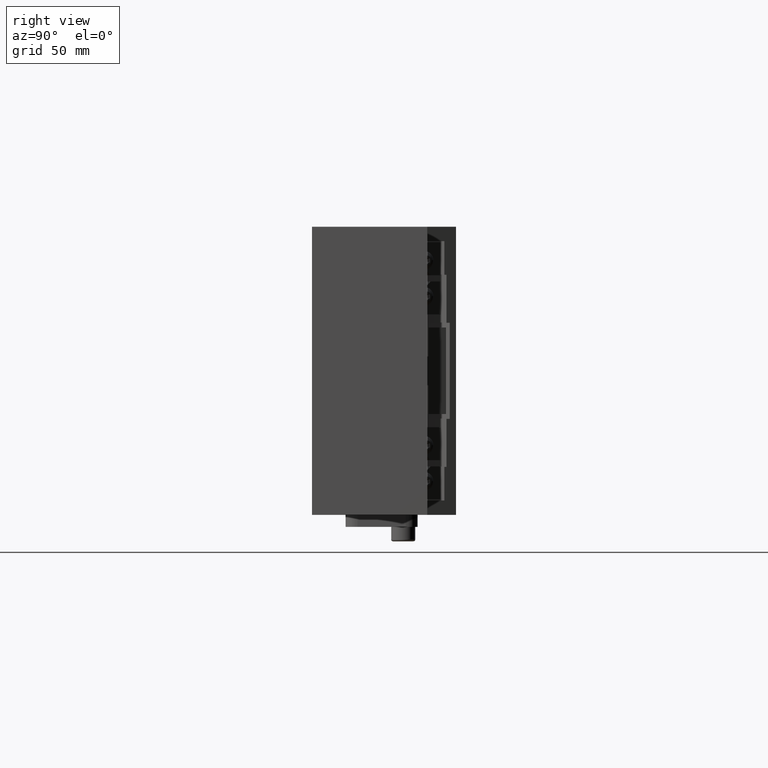
[diagram: clean part render]
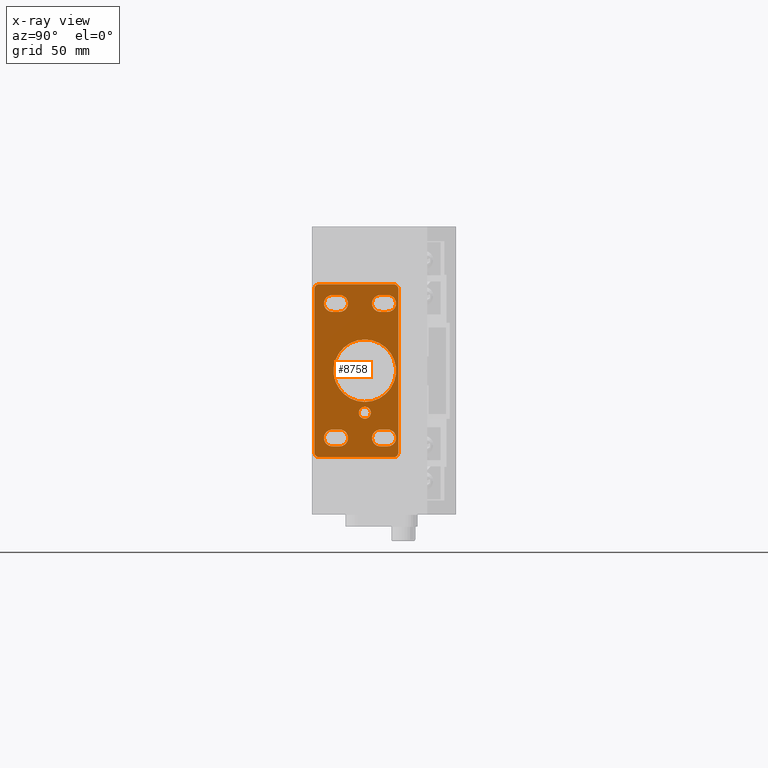
[diagram: x-ray — body ghosted, one internal face saturated and labeled with its STEP entity id]
A machine part, right view, then the same camera in x-ray: the body is ghosted and one INTERNAL B-rep face — a face not visible from any outside direction — is saturated and labeled: STEP entity #8758.
In plain terms, the highlighted planar face has unit normal (1, 0, -0).
Its self-contained STEP definition (entity closure, byte-faithful):
#15 = DIRECTION ( 'NONE',  ( -1.000000000000000000, -3.389675544402029850E-22, 0.000000000000000000 ) ) ;
#16 = CARTESIAN_POINT ( 'NONE',  ( -21.85429836251660163, 13.39383770330143975, -22.50124999999999886 ) ) ;
#317 = CARTESIAN_POINT ( 'NONE',  ( -21.85429836251660163, -6.606162296698549596, 29.99875000000000114 ) ) ;
#403 = DIRECTION ( 'NONE',  ( 3.389675544402035022E-22, -1.000000000000000000, 0.000000000000000000 ) ) ;
#450 = DIRECTION ( 'NONE',  ( -1.000000000000000000, -3.389675544402029850E-22, 0.000000000000000000 ) ) ;
#459 = EDGE_LOOP ( 'NONE', ( #18500, #81691, #52128, #59890 ) ) ;
#921 = EDGE_CURVE ( 'NONE', #13444, #88988, #40031, .T. ) ;
#990 = AXIS2_PLACEMENT_3D ( 'NONE', #16, #79049, #54771 ) ;
#1050 = CARTESIAN_POINT ( 'NONE',  ( -21.85429836251660163, -6.606162296698549596, 33.49875000000000114 ) ) ;
#1058 = VECTOR ( 'NONE', #42097, 1000.000000000000000 ) ;
#1107 = ORIENTED_EDGE ( 'NONE', *, *, #100101, .T. ) ;
#1124 = VERTEX_POINT ( 'NONE', #33847 ) ;
#1260 = VERTEX_POINT ( 'NONE', #13126 ) ;
#1799 = DIRECTION ( 'NONE',  ( 1.000000000000000000, 3.389675544402035022E-22, 0.000000000000000000 ) ) ;
#1974 = ORIENTED_EDGE ( 'NONE', *, *, #4255, .T. ) ;
#2243 = ORIENTED_EDGE ( 'NONE', *, *, #5034, .T. ) ;
#2312 = CARTESIAN_POINT ( 'NONE',  ( -21.85429836251660163, -9.606162296698549596, -22.50124999999999886 ) ) ;
#2470 = VERTEX_POINT ( 'NONE', #24743 ) ;
#3281 = DIRECTION ( 'NONE',  ( 0.000000000000000000, 0.000000000000000000, -1.000000000000000000 ) ) ;
#3567 = CIRCLE ( 'NONE', #97654, 2.000000000000001776 ) ;
#3606 = DIRECTION ( 'NONE',  ( 0.000000000000000000, 0.000000000000000000, -1.000000000000000000 ) ) ;
#3804 = FACE_BOUND ( 'NONE', #57893, .T. ) ;
#4020 = DIRECTION ( 'NONE',  ( -5.221200670323389832E-22, 0.000000000000000000, -1.000000000000000000 ) ) ;
#4255 = EDGE_CURVE ( 'NONE', #30353, #4613, #52357, .T. ) ;
#4315 = FACE_OUTER_BOUND ( 'NONE', #23215, .T. ) ;
#4613 = VERTEX_POINT ( 'NONE', #71420 ) ;
#4807 = DIRECTION ( 'NONE',  ( 0.000000000000000000, 0.000000000000000000, -1.000000000000000000 ) ) ;
#5034 = EDGE_CURVE ( 'NONE', #79952, #23345, #6746, .T. ) ;
#5421 = DIRECTION ( 'NONE',  ( 3.389675544402035022E-22, -1.000000000000000000, 0.000000000000000000 ) ) ;
#6023 = EDGE_LOOP ( 'NONE', ( #75878, #1974 ) ) ;
#6746 = CIRCLE ( 'NONE', #64502, 2.000000000000001776 ) ;
#7161 = CARTESIAN_POINT ( 'NONE',  ( -21.85429836251660163, 13.39383770330143975, 29.99875000000000114 ) ) ;
#7330 = VERTEX_POINT ( 'NONE', #90039 ) ;
#7583 = VERTEX_POINT ( 'NONE', #11423 ) ;
#7737 = ORIENTED_EDGE ( 'NONE', *, *, #56215, .T. ) ;
#7822 = AXIS2_PLACEMENT_3D ( 'NONE', #42553, #74064, #3281 ) ;
#7824 = AXIS2_PLACEMENT_3D ( 'NONE', #91194, #20447, #53492 ) ;
#8147 = CARTESIAN_POINT ( 'NONE',  ( -21.85429836251660163, -9.606162296698549596, -19.00125000000000242 ) ) ;
#8758 = ADVANCED_FACE ( 'NONE', ( #75096, #98341, #99369, #89556, #3804, #34333, #4315 ), #51832, .F. ) ;
#8998 = VECTOR ( 'NONE', #61318, 1000.000000000000000 ) ;
#9032 = CARTESIAN_POINT ( 'NONE',  ( -21.85429836251660163, 17.89383770330145040, 41.49875000000000114 ) ) ;
#9115 = ORIENTED_EDGE ( 'NONE', *, *, #46655, .F. ) ;
#9484 = AXIS2_PLACEMENT_3D ( 'NONE', #30745, #65167, #85966 ) ;
#10052 = AXIS2_PLACEMENT_3D ( 'NONE', #60074, #50804, #4807 ) ;
#10466 = CARTESIAN_POINT ( 'NONE',  ( -21.85429836251660163, -17.10616229669855315, -19.00125000000000242 ) ) ;
#11058 = LINE ( 'NONE', #50844, #42055 ) ;
#11124 = CARTESIAN_POINT ( 'NONE',  ( -21.85429836251660163, -17.10616229669855315, 36.99874999999999403 ) ) ;
#11423 = CARTESIAN_POINT ( 'NONE',  ( -21.85429836251660163, 15.89383770330144863, -30.50124999999999886 ) ) ;
#11942 = VERTEX_POINT ( 'NONE', #7161 ) ;
#13126 = CARTESIAN_POINT ( 'NONE',  ( -21.85429836251660163, -6.606162296698549596, -19.00125000000000242 ) ) ;
#13444 = VERTEX_POINT ( 'NONE', #61269 ) ;
#14303 = ORIENTED_EDGE ( 'NONE', *, *, #96295, .T. ) ;
#14792 = CARTESIAN_POINT ( 'NONE',  ( -21.85429836251660163, 3.893837703301449960, 5.498750000000000249 ) ) ;
#14942 = CIRCLE ( 'NONE', #72647, 3.499999999999999556 ) ;
#15446 = VERTEX_POINT ( 'NONE', #78563 ) ;
#15707 = DIRECTION ( 'NONE',  ( 0.000000000000000000, 0.000000000000000000, -1.000000000000000000 ) ) ;
#16467 = CARTESIAN_POINT ( 'NONE',  ( -21.85429836251660163, 3.893837703301449960, -7.501249999999999751 ) ) ;
#17286 = DIRECTION ( 'NONE',  ( 3.389675544402035022E-22, -1.000000000000000000, 0.000000000000000000 ) ) ;
#17621 = VECTOR ( 'NONE', #5421, 1000.000000000000000 ) ;
#18500 = ORIENTED_EDGE ( 'NONE', *, *, #97995, .T. ) ;
#18602 = EDGE_CURVE ( 'NONE', #7330, #66587, #33601, .T. ) ;
#18773 = CARTESIAN_POINT ( 'NONE',  ( -21.85429836251660163, 17.89383770330145040, 39.49875000000000114 ) ) ;
#18936 = DIRECTION ( 'NONE',  ( 0.000000000000000000, 0.000000000000000000, -1.000000000000000000 ) ) ;
#19315 = CARTESIAN_POINT ( 'NONE',  ( -21.85429836251660163, -17.10616229669855315, -30.50124999999999886 ) ) ;
#19685 = EDGE_CURVE ( 'NONE', #1260, #24202, #40199, .T. ) ;
#20138 = CARTESIAN_POINT ( 'NONE',  ( -21.85429836251660163, -9.606162296698549596, -26.00124999999999886 ) ) ;
#20447 = DIRECTION ( 'NONE',  ( 1.000000000000000000, 3.389675544402035022E-22, 0.000000000000000000 ) ) ;
#21232 = LINE ( 'NONE', #69767, #40043 ) ;
#22310 = EDGE_CURVE ( 'NONE', #95808, #63321, #66421, .T. ) ;
#22740 = AXIS2_PLACEMENT_3D ( 'NONE', #14792, #44771, #68011 ) ;
#22819 = AXIS2_PLACEMENT_3D ( 'NONE', #19315, #97328, #52345 ) ;
#22946 = CARTESIAN_POINT ( 'NONE',  ( -21.85429836251660163, -9.606162296698549596, 33.49875000000000114 ) ) ;
#23215 = EDGE_LOOP ( 'NONE', ( #38336, #2243, #9115, #58138, #74861, #86424, #94792, #49868 ) ) ;
#23345 = VERTEX_POINT ( 'NONE', #79659 ) ;
#24202 = VERTEX_POINT ( 'NONE', #8147 ) ;
#24743 = CARTESIAN_POINT ( 'NONE',  ( -21.85429836251660163, 10.39383770330144152, 29.99875000000000114 ) ) ;
#25400 = EDGE_CURVE ( 'NONE', #79551, #77999, #27689, .T. ) ;
#26381 = AXIS2_PLACEMENT_3D ( 'NONE', #1050, #47083, #40343 ) ;
#26731 = CIRCLE ( 'NONE', #64645, 3.499999999999999556 ) ;
#27260 = CARTESIAN_POINT ( 'NONE',  ( -21.85429836251660163, 10.39383770330144152, -19.00125000000000242 ) ) ;
#27297 = CIRCLE ( 'NONE', #66911, 3.499999999999999556 ) ;
#27358 = CIRCLE ( 'NONE', #50422, 2.000000000000001776 ) ;
#27689 = CIRCLE ( 'NONE', #22740, 13.00000000000000000 ) ;
#27832 = EDGE_LOOP ( 'NONE', ( #46672, #14303, #1107, #7737 ) ) ;
#28793 = VERTEX_POINT ( 'NONE', #63264 ) ;
#28826 = LINE ( 'NONE', #36060, #51213 ) ;
#30066 = EDGE_CURVE ( 'NONE', #40913, #1260, #14942, .T. ) ;
#30353 = VERTEX_POINT ( 'NONE', #84254 ) ;
#30576 = DIRECTION ( 'NONE',  ( -3.389675544402035022E-22, 1.000000000000000000, 0.000000000000000000 ) ) ;
#30745 = CARTESIAN_POINT ( 'NONE',  ( -21.85429836251660163, 13.39383770330143975, 33.49875000000000114 ) ) ;
#31993 = CARTESIAN_POINT ( 'NONE',  ( -21.85429836251660163, 10.39383770330144152, 36.99874999999999403 ) ) ;
#32397 = EDGE_LOOP ( 'NONE', ( #32412, #91469 ) ) ;
#32412 = ORIENTED_EDGE ( 'NONE', *, *, #25400, .F. ) ;
#33231 = LINE ( 'NONE', #64721, #101852 ) ;
#33601 = CIRCLE ( 'NONE', #38517, 2.000000000000001776 ) ;
#33847 = CARTESIAN_POINT ( 'NONE',  ( -21.85429836251660163, -6.606162296698549596, 36.99874999999999403 ) ) ;
#33863 = DIRECTION ( 'NONE',  ( 0.000000000000000000, 0.000000000000000000, -1.000000000000000000 ) ) ;
#34174 = ORIENTED_EDGE ( 'NONE', *, *, #22310, .T. ) ;
#34333 = FACE_BOUND ( 'NONE', #459, .T. ) ;
#35072 = EDGE_CURVE ( 'NONE', #80865, #1124, #75614, .T. ) ;
#36060 = CARTESIAN_POINT ( 'NONE',  ( -21.85429836251660163, -17.10616229669855315, 41.49875000000000114 ) ) ;
#38336 = ORIENTED_EDGE ( 'NONE', *, *, #54682, .F. ) ;
#38517 = AXIS2_PLACEMENT_3D ( 'NONE', #72262, #450, #63503 ) ;
#39151 = VECTOR ( 'NONE', #79293, 1000.000000000000000 ) ;
#39250 = EDGE_CURVE ( 'NONE', #1124, #67290, #21232, .T. ) ;
#39412 = CARTESIAN_POINT ( 'NONE',  ( -21.85429836251660163, 13.39383770330143975, 36.99874999999999403 ) ) ;
#40031 = LINE ( 'NONE', #9032, #39151 ) ;
#40043 = VECTOR ( 'NONE', #52735, 1000.000000000000000 ) ;
#40199 = LINE ( 'NONE', #73232, #74932 ) ;
#40343 = DIRECTION ( 'NONE',  ( 0.000000000000000000, 0.000000000000000000, -1.000000000000000000 ) ) ;
#40480 = DIRECTION ( 'NONE',  ( 1.000000000000000000, 3.389675544402035022E-22, 0.000000000000000000 ) ) ;
#40765 = ORIENTED_EDGE ( 'NONE', *, *, #39250, .T. ) ;
#40913 = VERTEX_POINT ( 'NONE', #72584 ) ;
#41412 = CARTESIAN_POINT ( 'NONE',  ( -21.85429836251660163, 13.39383770330143975, -19.00125000000000242 ) ) ;
#41658 = CARTESIAN_POINT ( 'NONE',  ( -21.85429836251660163, 15.89383770330144863, -28.50124999999999886 ) ) ;
#41929 = VERTEX_POINT ( 'NONE', #54180 ) ;
#42055 = VECTOR ( 'NONE', #17286, 1000.000000000000000 ) ;
#42097 = DIRECTION ( 'NONE',  ( -3.389675544402035022E-22, 1.000000000000000000, 0.000000000000000000 ) ) ;
#42553 = CARTESIAN_POINT ( 'NONE',  ( -21.85429836251660163, 10.39383770330144152, 33.49875000000000114 ) ) ;
#44771 = DIRECTION ( 'NONE',  ( -1.000000000000000000, -3.389675544402035022E-22, 0.000000000000000000 ) ) ;
#45227 = DIRECTION ( 'NONE',  ( 0.000000000000000000, 0.000000000000000000, -1.000000000000000000 ) ) ;
#45454 = CIRCLE ( 'NONE', #66916, 3.499999999999999556 ) ;
#46655 = EDGE_CURVE ( 'NONE', #7330, #23345, #28826, .T. ) ;
#46672 = ORIENTED_EDGE ( 'NONE', *, *, #58333, .T. ) ;
#47083 = DIRECTION ( 'NONE',  ( 1.000000000000000000, 3.389675544402035022E-22, 0.000000000000000000 ) ) ;
#47411 = EDGE_CURVE ( 'NONE', #4613, #30353, #92495, .T. ) ;
#48011 = CARTESIAN_POINT ( 'NONE',  ( -21.85429836251660163, -15.10616229669855137, 41.49875000000000114 ) ) ;
#48124 = EDGE_CURVE ( 'NONE', #13444, #7583, #3567, .T. ) ;
#49125 = AXIS2_PLACEMENT_3D ( 'NONE', #97120, #89356, #3606 ) ;
#49856 = ORIENTED_EDGE ( 'NONE', *, *, #56971, .T. ) ;
#49868 = ORIENTED_EDGE ( 'NONE', *, *, #48124, .T. ) ;
#50257 = LINE ( 'NONE', #10466, #62375 ) ;
#50295 = CARTESIAN_POINT ( 'NONE',  ( -21.85429836251660163, 10.39383770330144152, -26.00124999999999886 ) ) ;
#50422 = AXIS2_PLACEMENT_3D ( 'NONE', #52203, #83706, #77001 ) ;
#50804 = DIRECTION ( 'NONE',  ( 1.000000000000000000, 3.389675544402035022E-22, 0.000000000000000000 ) ) ;
#50844 = CARTESIAN_POINT ( 'NONE',  ( -21.85429836251660163, 17.89383770330145040, 41.49875000000000114 ) ) ;
#51213 = VECTOR ( 'NONE', #4020, 1000.000000000000000 ) ;
#51426 = ORIENTED_EDGE ( 'NONE', *, *, #81358, .T. ) ;
#51832 = PLANE ( 'NONE',  #22819 ) ;
#52128 = ORIENTED_EDGE ( 'NONE', *, *, #30066, .T. ) ;
#52203 = CARTESIAN_POINT ( 'NONE',  ( -21.85429836251660163, 15.89383770330144863, 39.49875000000000114 ) ) ;
#52345 = DIRECTION ( 'NONE',  ( -5.221200670323389832E-22, 0.000000000000000000, -1.000000000000000000 ) ) ;
#52357 = CIRCLE ( 'NONE', #7824, 2.500000000000000444 ) ;
#52735 = DIRECTION ( 'NONE',  ( 3.389675544402035022E-22, -1.000000000000000000, 0.000000000000000000 ) ) ;
#53492 = DIRECTION ( 'NONE',  ( 0.000000000000000000, 0.000000000000000000, -1.000000000000000000 ) ) ;
#54180 = CARTESIAN_POINT ( 'NONE',  ( -21.85429836251660163, -9.606162296698549596, 29.99875000000000114 ) ) ;
#54682 = EDGE_CURVE ( 'NONE', #79952, #7583, #57788, .T. ) ;
#54771 = DIRECTION ( 'NONE',  ( 0.000000000000000000, 0.000000000000000000, -1.000000000000000000 ) ) ;
#56215 = EDGE_CURVE ( 'NONE', #15446, #66224, #81828, .T. ) ;
#56971 = EDGE_CURVE ( 'NONE', #2470, #11942, #66372, .T. ) ;
#57788 = LINE ( 'NONE', #98579, #70219 ) ;
#57893 = EDGE_LOOP ( 'NONE', ( #91630, #70348, #100442, #40765 ) ) ;
#58138 = ORIENTED_EDGE ( 'NONE', *, *, #18602, .T. ) ;
#58279 = DIRECTION ( 'NONE',  ( -3.389675544402035022E-22, 1.000000000000000000, 0.000000000000000000 ) ) ;
#58333 = EDGE_CURVE ( 'NONE', #66224, #78794, #50257, .T. ) ;
#59520 = EDGE_CURVE ( 'NONE', #11942, #95808, #90528, .T. ) ;
#59890 = ORIENTED_EDGE ( 'NONE', *, *, #19685, .T. ) ;
#60074 = CARTESIAN_POINT ( 'NONE',  ( -21.85429836251660163, 3.893837703301449960, -12.00125000000000064 ) ) ;
#61269 = CARTESIAN_POINT ( 'NONE',  ( -21.85429836251660163, 17.89383770330145040, -28.50124999999999886 ) ) ;
#61318 = DIRECTION ( 'NONE',  ( -3.389675544402035022E-22, 1.000000000000000000, 0.000000000000000000 ) ) ;
#62375 = VECTOR ( 'NONE', #80207, 1000.000000000000000 ) ;
#63158 = VERTEX_POINT ( 'NONE', #20138 ) ;
#63264 = CARTESIAN_POINT ( 'NONE',  ( -21.85429836251660163, 15.89383770330144863, 41.49875000000000114 ) ) ;
#63321 = VERTEX_POINT ( 'NONE', #31993 ) ;
#63503 = DIRECTION ( 'NONE',  ( 0.000000000000000000, 0.000000000000000000, -1.000000000000000000 ) ) ;
#64502 = AXIS2_PLACEMENT_3D ( 'NONE', #78547, #15, #68756 ) ;
#64645 = AXIS2_PLACEMENT_3D ( 'NONE', #22946, #40480, #15707 ) ;
#64721 = CARTESIAN_POINT ( 'NONE',  ( -21.85429836251660163, -17.10616229669855315, -26.00124999999999886 ) ) ;
#65167 = DIRECTION ( 'NONE',  ( 1.000000000000000000, 3.389675544402035022E-22, 0.000000000000000000 ) ) ;
#65261 = VERTEX_POINT ( 'NONE', #50295 ) ;
#65971 = CARTESIAN_POINT ( 'NONE',  ( -21.85429836251660163, -6.606162296698549596, -22.50124999999999886 ) ) ;
#66224 = VERTEX_POINT ( 'NONE', #41412 ) ;
#66372 = LINE ( 'NONE', #80305, #1058 ) ;
#66421 = LINE ( 'NONE', #11124, #17621 ) ;
#66587 = VERTEX_POINT ( 'NONE', #48011 ) ;
#66911 = AXIS2_PLACEMENT_3D ( 'NONE', #2312, #1799, #33863 ) ;
#66916 = AXIS2_PLACEMENT_3D ( 'NONE', #82959, #81438, #96438 ) ;
#67290 = VERTEX_POINT ( 'NONE', #77123 ) ;
#68011 = DIRECTION ( 'NONE',  ( 0.000000000000000000, 0.000000000000000000, -1.000000000000000000 ) ) ;
#68298 = VECTOR ( 'NONE', #30576, 1000.000000000000000 ) ;
#68756 = DIRECTION ( 'NONE',  ( 0.000000000000000000, 0.000000000000000000, -1.000000000000000000 ) ) ;
#69562 = CARTESIAN_POINT ( 'NONE',  ( -21.85429836251660163, -37.10616229669854960, -26.00124999999999886 ) ) ;
#69767 = CARTESIAN_POINT ( 'NONE',  ( -21.85429836251660163, -37.10616229669854960, 36.99874999999999403 ) ) ;
#70219 = VECTOR ( 'NONE', #58279, 1000.000000000000000 ) ;
#70348 = ORIENTED_EDGE ( 'NONE', *, *, #77698, .T. ) ;
#71420 = CARTESIAN_POINT ( 'NONE',  ( -21.85429836251660163, 3.893837703301449960, -14.50125000000000064 ) ) ;
#72262 = CARTESIAN_POINT ( 'NONE',  ( -21.85429836251660163, -15.10616229669855137, 39.49875000000000114 ) ) ;
#72584 = CARTESIAN_POINT ( 'NONE',  ( -21.85429836251660163, -6.606162296698549596, -26.00124999999999886 ) ) ;
#72647 = AXIS2_PLACEMENT_3D ( 'NONE', #65971, #98990, #18936 ) ;
#73232 = CARTESIAN_POINT ( 'NONE',  ( -21.85429836251660163, -37.10616229669854960, -19.00125000000000242 ) ) ;
#74064 = DIRECTION ( 'NONE',  ( 1.000000000000000000, 3.389675544402035022E-22, 0.000000000000000000 ) ) ;
#74861 = ORIENTED_EDGE ( 'NONE', *, *, #78845, .F. ) ;
#74932 = VECTOR ( 'NONE', #403, 1000.000000000000000 ) ;
#75096 = FACE_BOUND ( 'NONE', #6023, .T. ) ;
#75564 = EDGE_LOOP ( 'NONE', ( #34174, #51426, #49856, #75586 ) ) ;
#75586 = ORIENTED_EDGE ( 'NONE', *, *, #59520, .T. ) ;
#75614 = CIRCLE ( 'NONE', #26381, 3.499999999999999556 ) ;
#75878 = ORIENTED_EDGE ( 'NONE', *, *, #47411, .T. ) ;
#77001 = DIRECTION ( 'NONE',  ( 0.000000000000000000, 0.000000000000000000, -1.000000000000000000 ) ) ;
#77123 = CARTESIAN_POINT ( 'NONE',  ( -21.85429836251660163, -9.606162296698549596, 36.99874999999999403 ) ) ;
#77248 = DIRECTION ( 'NONE',  ( -1.000000000000000000, -3.389675544402029850E-22, 0.000000000000000000 ) ) ;
#77698 = EDGE_CURVE ( 'NONE', #41929, #80865, #100827, .T. ) ;
#77999 = VERTEX_POINT ( 'NONE', #98509 ) ;
#78072 = EDGE_CURVE ( 'NONE', #63158, #40913, #93303, .T. ) ;
#78547 = CARTESIAN_POINT ( 'NONE',  ( -21.85429836251660163, -15.10616229669855137, -28.50124999999999886 ) ) ;
#78563 = CARTESIAN_POINT ( 'NONE',  ( -21.85429836251660163, 13.39383770330143975, -26.00124999999999886 ) ) ;
#78794 = VERTEX_POINT ( 'NONE', #27260 ) ;
#78830 = CIRCLE ( 'NONE', #49125, 13.00000000000000000 ) ;
#78845 = EDGE_CURVE ( 'NONE', #28793, #66587, #11058, .T. ) ;
#79049 = DIRECTION ( 'NONE',  ( 1.000000000000000000, 3.389675544402035022E-22, 0.000000000000000000 ) ) ;
#79293 = DIRECTION ( 'NONE',  ( 5.221200670323389832E-22, 0.000000000000000000, 1.000000000000000000 ) ) ;
#79551 = VERTEX_POINT ( 'NONE', #16467 ) ;
#79659 = CARTESIAN_POINT ( 'NONE',  ( -21.85429836251660163, -17.10616229669855315, -28.50124999999999886 ) ) ;
#79952 = VERTEX_POINT ( 'NONE', #86073 ) ;
#80207 = DIRECTION ( 'NONE',  ( 3.389675544402035022E-22, -1.000000000000000000, 0.000000000000000000 ) ) ;
#80305 = CARTESIAN_POINT ( 'NONE',  ( -21.85429836251660163, -17.10616229669855315, 29.99875000000000114 ) ) ;
#80865 = VERTEX_POINT ( 'NONE', #317 ) ;
#81358 = EDGE_CURVE ( 'NONE', #63321, #2470, #100233, .T. ) ;
#81438 = DIRECTION ( 'NONE',  ( 1.000000000000000000, 3.389675544402035022E-22, 0.000000000000000000 ) ) ;
#81691 = ORIENTED_EDGE ( 'NONE', *, *, #78072, .T. ) ;
#81828 = CIRCLE ( 'NONE', #990, 3.499999999999999556 ) ;
#82959 = CARTESIAN_POINT ( 'NONE',  ( -21.85429836251660163, 10.39383770330144152, -22.50124999999999886 ) ) ;
#83706 = DIRECTION ( 'NONE',  ( -1.000000000000000000, -3.389675544402029850E-22, 0.000000000000000000 ) ) ;
#84008 = EDGE_CURVE ( 'NONE', #28793, #88988, #27358, .T. ) ;
#84254 = CARTESIAN_POINT ( 'NONE',  ( -21.85429836251660163, 3.893837703301449960, -9.501249999999998863 ) ) ;
#85966 = DIRECTION ( 'NONE',  ( 0.000000000000000000, 0.000000000000000000, -1.000000000000000000 ) ) ;
#86073 = CARTESIAN_POINT ( 'NONE',  ( -21.85429836251660163, -15.10616229669855137, -30.50124999999999886 ) ) ;
#86404 = DIRECTION ( 'NONE',  ( -3.389675544402035022E-22, 1.000000000000000000, 0.000000000000000000 ) ) ;
#86424 = ORIENTED_EDGE ( 'NONE', *, *, #84008, .T. ) ;
#88988 = VERTEX_POINT ( 'NONE', #18773 ) ;
#89356 = DIRECTION ( 'NONE',  ( -1.000000000000000000, -3.389675544402035022E-22, 0.000000000000000000 ) ) ;
#89556 = FACE_BOUND ( 'NONE', #32397, .T. ) ;
#90039 = CARTESIAN_POINT ( 'NONE',  ( -21.85429836251660163, -17.10616229669855315, 39.49875000000000114 ) ) ;
#90528 = CIRCLE ( 'NONE', #9484, 3.499999999999999556 ) ;
#91194 = CARTESIAN_POINT ( 'NONE',  ( -21.85429836251660163, 3.893837703301449960, -12.00125000000000064 ) ) ;
#91469 = ORIENTED_EDGE ( 'NONE', *, *, #100603, .F. ) ;
#91630 = ORIENTED_EDGE ( 'NONE', *, *, #92296, .T. ) ;
#92296 = EDGE_CURVE ( 'NONE', #67290, #41929, #26731, .T. ) ;
#92495 = CIRCLE ( 'NONE', #10052, 2.500000000000000444 ) ;
#93303 = LINE ( 'NONE', #69562, #8998 ) ;
#94792 = ORIENTED_EDGE ( 'NONE', *, *, #921, .F. ) ;
#95808 = VERTEX_POINT ( 'NONE', #39412 ) ;
#96295 = EDGE_CURVE ( 'NONE', #78794, #65261, #45454, .T. ) ;
#96438 = DIRECTION ( 'NONE',  ( 0.000000000000000000, 0.000000000000000000, -1.000000000000000000 ) ) ;
#97120 = CARTESIAN_POINT ( 'NONE',  ( -21.85429836251660163, 3.893837703301449960, 5.498750000000000249 ) ) ;
#97328 = DIRECTION ( 'NONE',  ( 1.000000000000000000, 3.389675544402035022E-22, -5.221200670323389832E-22 ) ) ;
#97654 = AXIS2_PLACEMENT_3D ( 'NONE', #41658, #77248, #45227 ) ;
#97995 = EDGE_CURVE ( 'NONE', #24202, #63158, #27297, .T. ) ;
#98341 = FACE_BOUND ( 'NONE', #27832, .T. ) ;
#98509 = CARTESIAN_POINT ( 'NONE',  ( -21.85429836251660163, 3.893837703301449960, 18.49875000000000114 ) ) ;
#98579 = CARTESIAN_POINT ( 'NONE',  ( -21.85429836251660163, 17.89383770330145040, -30.50124999999999886 ) ) ;
#98990 = DIRECTION ( 'NONE',  ( 1.000000000000000000, 3.389675544402035022E-22, 0.000000000000000000 ) ) ;
#99369 = FACE_BOUND ( 'NONE', #75564, .T. ) ;
#100101 = EDGE_CURVE ( 'NONE', #65261, #15446, #33231, .T. ) ;
#100233 = CIRCLE ( 'NONE', #7822, 3.499999999999999556 ) ;
#100442 = ORIENTED_EDGE ( 'NONE', *, *, #35072, .T. ) ;
#100603 = EDGE_CURVE ( 'NONE', #77999, #79551, #78830, .T. ) ;
#100827 = LINE ( 'NONE', #101324, #68298 ) ;
#101324 = CARTESIAN_POINT ( 'NONE',  ( -21.85429836251660163, -37.10616229669854960, 29.99875000000000114 ) ) ;
#101852 = VECTOR ( 'NONE', #86404, 1000.000000000000000 ) ;